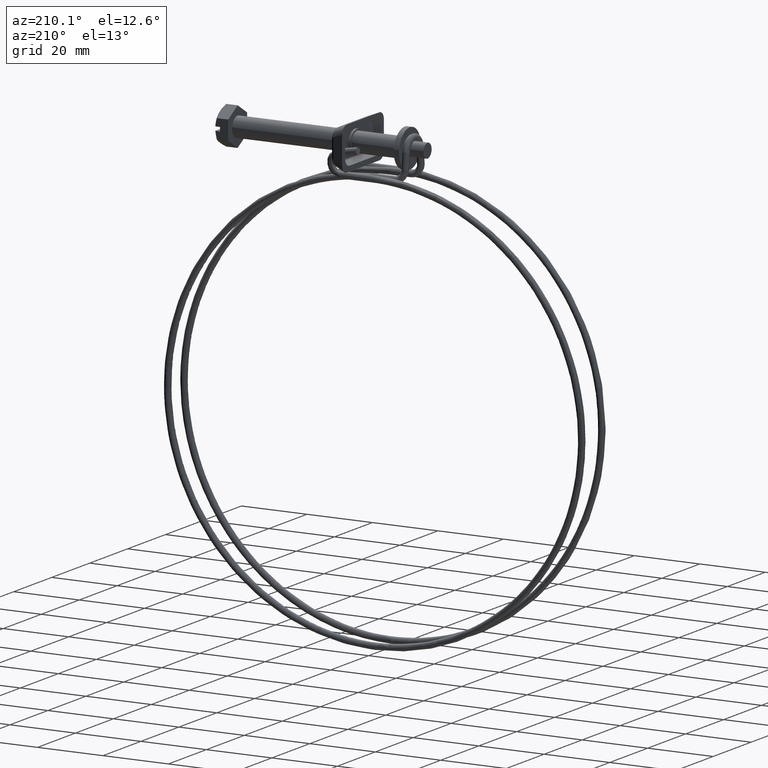
[diagram: clean part render]
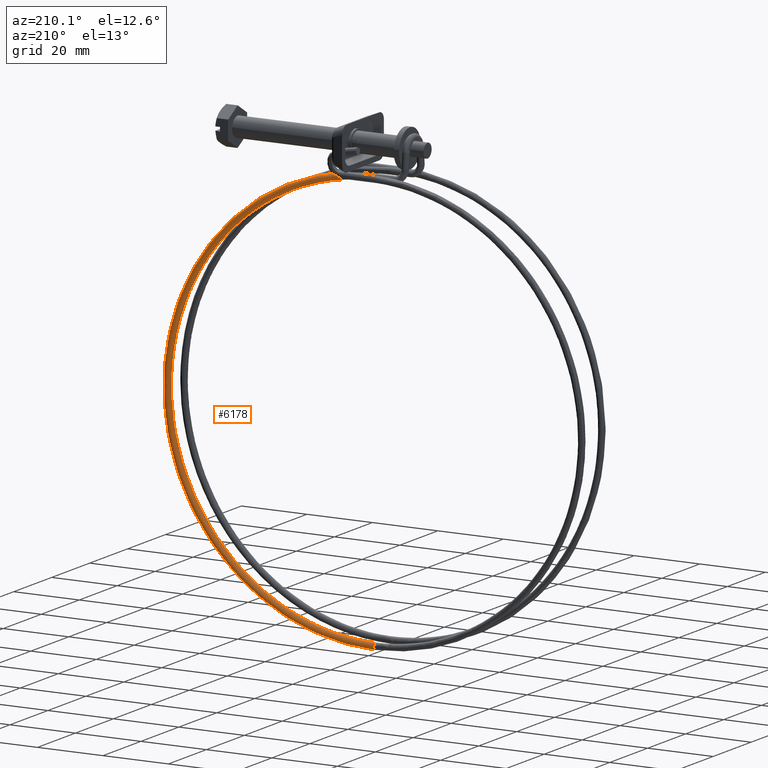
[diagram: same view with one face highlighted and labeled with its STEP entity id]
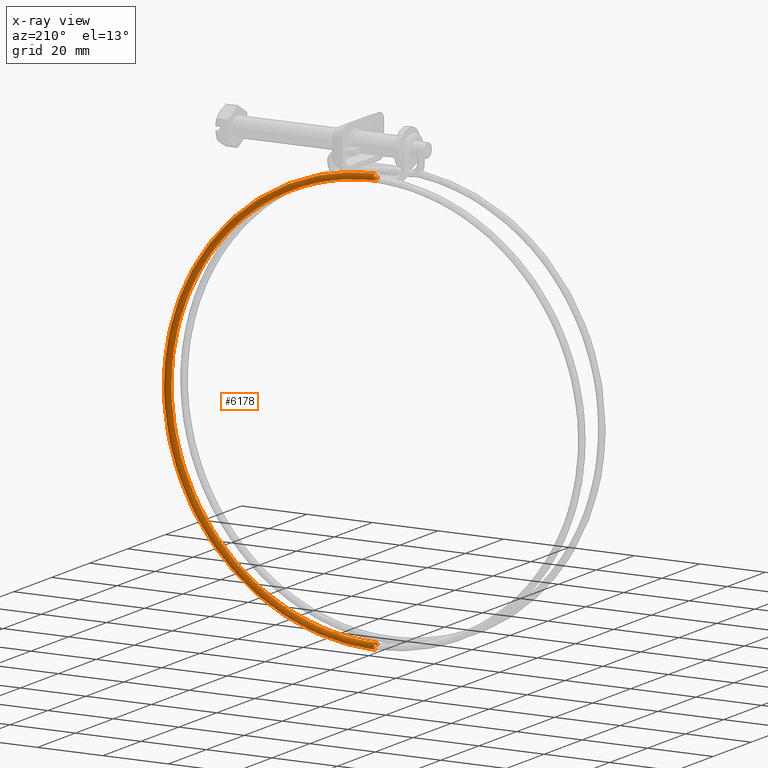
[diagram: x-ray of the same camera — body ghosted, the highlighted face saturated]
A machine part, auxiliary view. The second image highlights one B-rep face of the part: STEP entity #6178.
The next image is the same camera in x-ray: the body ghosted, the highlighted face saturated — about 0% of this face is hidden behind the body in this view.
In plain terms, the highlighted face is a freeform B-spline surface patch.
Its self-contained STEP definition (entity closure, byte-faithful):
#5491=CARTESIAN_POINT('',(-44.650000000000752,4.871712610916520,-7.029545652424361));
#5492=VERTEX_POINT('',#5491);
#5498=CARTESIAN_POINT('',(-44.650000000000752,4.300002000000000,-8.850000999999999));
#5499=VERTEX_POINT('',#5498);
#5500=CARTESIAN_POINT('',(-44.650000000000752,4.871712610916520,-7.029545652424361));
#5501=CARTESIAN_POINT('',(-44.650000000000752,5.300002000000000,-7.327986742516820));
#5502=CARTESIAN_POINT('',(-44.650000000000752,5.300002000000000,-7.850001000000001));
#5503=CARTESIAN_POINT('',(-44.650000000000752,5.300002000000001,-8.850000999999999));
#5504=CARTESIAN_POINT('',(-44.650000000000752,4.300002000000000,-8.850000999999999));
#5512=(BOUNDED_CURVE()B_SPLINE_CURVE(2,(#5500,#5501,#5502,#5503,#5504),.UNSPECIFIED.,.F.,.U.)B_SPLINE_CURVE_WITH_KNOTS((3,2,3),(0.098251884135268,0.250000000000000,0.500000000000000),.UNSPECIFIED.)CURVE()GEOMETRIC_REPRESENTATION_ITEM()RATIONAL_B_SPLINE_CURVE((0.860259114782978,0.822216023582008,1.0,0.707106781186548,1.0))REPRESENTATION_ITEM(''));
#5513=EDGE_CURVE('',#5492,#5499,#5512,.T.);
#5515=CARTESIAN_POINT('',(-44.649999999847267,3.302436326670402,-7.919734258877777));
#5516=VERTEX_POINT('',#5515);
#5517=CARTESIAN_POINT('',(-44.650000000000752,4.300002000000000,-8.850000999999999));
#5518=CARTESIAN_POINT('',(-44.650000000000759,3.367465166419305,-8.850000999999999));
#5519=CARTESIAN_POINT('',(-44.649999999847267,3.302436326670402,-7.919734258877777));
#5527=(BOUNDED_CURVE()B_SPLINE_CURVE(2,(#5517,#5518,#5519),.UNSPECIFIED.,.F.,.U.)B_SPLINE_CURVE_WITH_KNOTS((3,3),(0.500000000000000,0.737833684017261),.UNSPECIFIED.)CURVE()GEOMETRIC_REPRESENTATION_ITEM()RATIONAL_B_SPLINE_CURVE((1.0,0.721360506983691,0.972879871061548))REPRESENTATION_ITEM(''));
#5528=EDGE_CURVE('',#5499,#5516,#5527,.T.);
#5645=CARTESIAN_POINT('',(-44.649999999983557,4.287435958278233,-6.850079955819304));
#5646=VERTEX_POINT('',#5645);
#5660=CARTESIAN_POINT('',(-44.650000000000752,4.300002000000000,-6.850001000000001));
#5661=VERTEX_POINT('',#5660);
#5662=CARTESIAN_POINT('',(-44.649999999983564,4.287435958278233,-6.850079955819304));
#5663=CARTESIAN_POINT('',(-44.650000000000752,4.293718730169101,-6.850001000000001));
#5664=CARTESIAN_POINT('',(-44.650000000000752,4.300002000000000,-6.850001000000001));
#5672=(BOUNDED_CURVE()B_SPLINE_CURVE(2,(#5662,#5663,#5664),.UNSPECIFIED.,.F.,.U.)B_SPLINE_CURVE_WITH_KNOTS((3,3),(0.997784295274912,1.0),.UNSPECIFIED.)CURVE()GEOMETRIC_REPRESENTATION_ITEM()RATIONAL_B_SPLINE_CURVE((0.994854294155291,0.997404140444515,1.0))REPRESENTATION_ITEM(''));
#5673=EDGE_CURVE('',#5646,#5661,#5672,.T.);
#5675=CARTESIAN_POINT('',(-44.650000000000752,4.300002000000000,-6.850001000000001));
#5676=CARTESIAN_POINT('',(-44.650000000000745,4.614050137306690,-6.850001000000001));
#5677=CARTESIAN_POINT('',(-44.650000000000752,4.871712610916520,-7.029545652424361));
#5685=(BOUNDED_CURVE()B_SPLINE_CURVE(2,(#5675,#5676,#5677),.UNSPECIFIED.,.F.,.U.)B_SPLINE_CURVE_WITH_KNOTS((3,3),(0.0,0.098251884135268),.UNSPECIFIED.)CURVE()GEOMETRIC_REPRESENTATION_ITEM()RATIONAL_B_SPLINE_CURVE((1.0,0.884890757604540,0.860259114782978))REPRESENTATION_ITEM(''));
#5686=EDGE_CURVE('',#5661,#5492,#5685,.T.);
#6043=CARTESIAN_POINT('',(-53.432480049790740,3.300955242574922,-134.190713116354200));
#6044=CARTESIAN_POINT('',(19.724674720302861,3.300955242574922,-144.414996556652570));
#6045=CARTESIAN_POINT('',(18.796444458269598,3.300955242574922,-70.552667494378710));
#6046=CARTESIAN_POINT('',(17.888216323286368,3.300955242574921,1.718026657310488));
#6047=CARTESIAN_POINT('',(-53.656390111342802,3.300955242574923,-8.540988969258873));
#6048=CARTESIAN_POINT('',(-53.431019694714372,3.301692775296301,-134.180263932021210));
#6049=CARTESIAN_POINT('',(19.713970467918102,3.301692775296301,-144.402847273470540));
#6050=CARTESIAN_POINT('',(18.785894552466619,3.301692775296301,-70.552800075383814));
#6051=CARTESIAN_POINT('',(17.877817438101690,3.301692775296301,1.705876869949257));
#6052=CARTESIAN_POINT('',(-53.654892524391933,3.301692775296302,-8.551432882486166));
#6053=CARTESIAN_POINT('',(-53.299155210866850,3.368289162161057,-133.236742509728910));
#6054=CARTESIAN_POINT('',(18.747417375088101,3.368289162161057,-143.305813420643660));
#6055=CARTESIAN_POINT('',(17.833278366262171,3.368289162161057,-70.564771633597090));
#6056=CARTESIAN_POINT('',(16.938837836729363,3.368289162161058,0.608797491668740));
#6057=CARTESIAN_POINT('',(-53.519666144527918,3.368289162161058,-9.494478344069872));
#6058=CARTESIAN_POINT('',(-53.300797723020167,4.312568039884106,-133.248495070826490));
#6059=CARTESIAN_POINT('',(18.759456820096087,4.312568039884107,-143.319478142055170));
#6060=CARTESIAN_POINT('',(17.845144212300649,4.312568039884106,-70.564622515128761));
#6061=CARTESIAN_POINT('',(16.950533824625122,4.312568039884106,0.622462780148170));
#6062=CARTESIAN_POINT('',(-53.521350532665572,4.312568039884107,-9.482731711568254));
#6063=CARTESIAN_POINT('',(-53.302537021130291,5.312489084087922,-133.260940158228120));
#6064=CARTESIAN_POINT('',(18.772205696204658,5.312489084087923,-143.333948064897870));
#6065=CARTESIAN_POINT('',(17.857709260022325,5.312489084087922,-70.564464609770397));
#6066=CARTESIAN_POINT('',(16.962919005217035,5.312489084087923,0.636933303473491));
#6067=CARTESIAN_POINT('',(-53.523134174326117,5.312489084087922,-9.470292902108474));
#6068=CARTESIAN_POINT('',(-53.440938681366852,5.299923044204570,-134.251236616408900));
#6069=CARTESIAN_POINT('',(19.786675619047337,5.299923044204570,-144.485367326073260));
#6070=CARTESIAN_POINT('',(18.857551354663968,5.299923044204570,-70.551899562048746));
#6071=CARTESIAN_POINT('',(17.948448481891717,5.299923044204570,1.788400347025015));
#6072=CARTESIAN_POINT('',(-53.665064396436627,5.299923044204571,-8.480496000368872));
#6073=CARTESIAN_POINT('',(-53.579340341603420,5.287357004321217,-135.241533074589680));
#6074=CARTESIAN_POINT('',(20.801145541889994,5.287357004321218,-145.636786587248650));
#6075=CARTESIAN_POINT('',(19.857393449305601,5.287357004321217,-70.539334514327066));
#6076=CARTESIAN_POINT('',(18.933977958566373,5.287357004321218,2.939867390576525));
#6077=CARTESIAN_POINT('',(-53.806994618547151,5.287357004321216,-7.490699098629279));
#6078=CARTESIAN_POINT('',(-53.577582844403580,4.276973318501491,-135.228957768417220));
#6079=CARTESIAN_POINT('',(20.788263268327196,4.276973318501492,-145.622165258834710));
#6080=CARTESIAN_POINT('',(19.844696927612116,4.276973318501491,-70.539494071923045));
#6081=CARTESIAN_POINT('',(18.921463186036572,4.276973318501492,2.925245455396814));
#6082=CARTESIAN_POINT('',(-53.805192313809577,4.276973318501490,-7.503268061170911));
#6083=CARTESIAN_POINT('',(-53.577564802386803,4.266600977995334,-135.228828673540220));
#6084=CARTESIAN_POINT('',(20.788131022201529,4.266600977995335,-145.622015160016700));
#6085=CARTESIAN_POINT('',(19.844566588367620,4.266600977995334,-70.539495709900507));
#6086=CARTESIAN_POINT('',(18.921334712582500,4.266600977995335,2.925095350349916));
#6087=CARTESIAN_POINT('',(-53.805173811810100,4.266600977995334,-7.503397090925766));
#6095=(BOUNDED_SURFACE()B_SPLINE_SURFACE(2,2,((#6043,#6048,#6053,#6058,#6063,#6068,#6073,#6078,#6083),(#6044,#6049,#6054,#6059,#6064,#6069,#6074,#6079,#6084),(#6045,#6050,#6055,#6060,#6065,#6070,#6075,#6080,#6085),(#6046,#6051,#6056,#6061,#6066,#6071,#6076,#6081,#6086),(#6047,#6052,#6057,#6062,#6067,#6072,#6077,#6082,#6087)),.UNSPECIFIED.,.F.,.F.,.U.)B_SPLINE_SURFACE_WITH_KNOTS((3,2,3),(3,1,2,2,1,3),(0.0,118.497274549801400,235.318141214528400),(0.0,0.024522101943496,1.615102181456185,3.271956430948570,4.928810680440955,4.953434834273305),.UNSPECIFIED.)GEOMETRIC_REPRESENTATION_ITEM()RATIONAL_B_SPLINE_SURFACE(((0.985482083298796,0.981493942046961,0.718822509939086,1.0,0.707106781186548,1.0,0.707106781186548,1.004352976538959,1.008705953077918),(0.642135638297604,0.639536983617049,0.468381474473210,0.651595446715910,0.460747558963097,0.651595446715910,0.460747558963097,0.654431826408357,0.657268206100803),(0.985482083298796,0.981493942046961,0.718822509939086,1.0,0.707106781186548,1.0,0.707106781186548,1.004352976538959,1.008705953077918),(0.646993038519669,0.644374726456670,0.471924520743230,0.656524405145884,0.464232858893119,0.656524405145884,0.464232858893119,0.659382240478738,0.662240075811592),(0.975904720345346,0.971955337663480,0.711836665961333,0.990281545331204,0.700234795987588,0.990281545331204,0.700234795987588,0.994592217664995,0.998902889998786)))REPRESENTATION_ITEM('')SURFACE());
#6096=CARTESIAN_POINT('',(-44.649999999999046,4.300002000000752,-133.850000999999990));
#6097=VERTEX_POINT('',#6096);
#6098=CARTESIAN_POINT('',(-44.649999999769619,3.302485887016020,-134.780271342321810));
#6099=VERTEX_POINT('',#6098);
#6100=CARTESIAN_POINT('',(-44.649999999999046,4.300002000000752,-133.850000999999990));
#6101=CARTESIAN_POINT('',(-44.649999999966852,4.038195655370024,-133.850000495566090));
#6102=CARTESIAN_POINT('',(-44.649999999922478,3.777998799463453,-133.957772896960310));
#6103=CARTESIAN_POINT('',(-44.649999999838357,3.424196145361151,-134.311556064605810));
#6104=CARTESIAN_POINT('',(-44.649999999799007,3.319730377627817,-134.542534340478000));
#6105=CARTESIAN_POINT('',(-44.649999999769619,3.302485887016020,-134.780271342321810));
#6106=B_SPLINE_CURVE_WITH_KNOTS('',3,(#6100,#6101,#6102,#6103,#6104,#6105),.UNSPECIFIED.,.F.,.U.,(4,2,4),(0.500000000000000,0.625000000000000,0.738888458231654),.UNSPECIFIED.);
#6107=EDGE_CURVE('',#6097,#6099,#6106,.T.);
#6108=ORIENTED_EDGE('',*,*,#6107,.T.);
#6109=CARTESIAN_POINT('',(-44.649999999769626,3.302485887016020,-134.780271342321900));
#6110=CARTESIAN_POINT('',(19.582405530913508,3.302485887016020,-134.780271342088530));
#6111=CARTESIAN_POINT('',(18.775258561133576,3.302460795454571,-70.552935516292749));
#6112=CARTESIAN_POINT('',(17.988145131122849,3.302436326670402,-7.919734259180106));
#6113=CARTESIAN_POINT('',(-44.649999999847267,3.302436326670402,-7.919734258877777));
#6121=(BOUNDED_CURVE()B_SPLINE_CURVE(2,(#6109,#6110,#6111,#6112,#6113),.UNSPECIFIED.,.F.,.U.)B_SPLINE_CURVE_WITH_KNOTS((3,2,3),(-3.822326489113122,-2.0,-0.208790604149167),.UNSPECIFIED.)CURVE()GEOMETRIC_REPRESENTATION_ITEM()RATIONAL_B_SPLINE_CURVE((0.922371478316950,0.667193238145990,0.977505800795127,0.672491973037953,0.913821779423857))REPRESENTATION_ITEM(''));
#6122=EDGE_CURVE('',#6099,#5516,#6121,.T.);
#6123=ORIENTED_EDGE('',*,*,#6122,.T.);
#6124=ORIENTED_EDGE('',*,*,#5528,.F.);
#6125=ORIENTED_EDGE('',*,*,#5513,.F.);
#6126=ORIENTED_EDGE('',*,*,#5686,.F.);
#6127=ORIENTED_EDGE('',*,*,#5673,.F.);
#6128=CARTESIAN_POINT('',(-44.649999999938402,4.287435984473220,-135.849920191922910));
#6129=VERTEX_POINT('',#6128);
#6130=CARTESIAN_POINT('',(-44.649999999938402,4.287435984473220,-135.849920191922910));
#6131=CARTESIAN_POINT('',(20.665586668666208,4.287435984473220,-135.849920191860520));
#6132=CARTESIAN_POINT('',(19.844828401575199,4.287435971211143,-70.539491505194604));
#6133=CARTESIAN_POINT('',(19.044441509214234,4.287435958278235,-6.850079955852583));
#6134=CARTESIAN_POINT('',(-44.649999999983564,4.287435958278233,-6.850079955819305));
#6142=(BOUNDED_CURVE()B_SPLINE_CURVE(2,(#6130,#6131,#6132,#6133,#6134),.UNSPECIFIED.,.F.,.U.)B_SPLINE_CURVE_WITH_KNOTS((3,2,3),(-3.822326489116452,-2.0,-0.208790604143862),.UNSPECIFIED.)CURVE()GEOMETRIC_REPRESENTATION_ITEM()RATIONAL_B_SPLINE_CURVE((0.943596935759976,0.682546576810809,1.0,0.687967245299239,0.934850492633354))REPRESENTATION_ITEM(''));
#6143=EDGE_CURVE('',#6129,#5646,#6142,.T.);
#6144=ORIENTED_EDGE('',*,*,#6143,.F.);
#6145=CARTESIAN_POINT('',(-44.649999999999046,4.300002000000752,-135.850000999999990));
#6146=VERTEX_POINT('',#6145);
#6147=CARTESIAN_POINT('',(-44.649999999938402,4.287435984473220,-135.849920191922910));
#6148=CARTESIAN_POINT('',(-44.649999999958617,4.291624042900045,-135.849974639911810));
#6149=CARTESIAN_POINT('',(-44.649999999978832,4.295812815061126,-135.850001617475900));
#6150=CARTESIAN_POINT('',(-44.649999999999046,4.300002000000752,-135.850000999999990));
#6151=B_SPLINE_CURVE_WITH_KNOTS('',3,(#6147,#6148,#6149,#6150),.UNSPECIFIED.,.F.,.U.,(4,4),(0.997999815404391,1.0),.UNSPECIFIED.);
#6152=EDGE_CURVE('',#6129,#6146,#6151,.T.);
#6153=ORIENTED_EDGE('',*,*,#6152,.T.);
#6154=CARTESIAN_POINT('',(-44.649999999999046,5.028951109211137,-135.534536542634610));
#6155=VERTEX_POINT('',#6154);
#6156=CARTESIAN_POINT('',(-44.649999999999046,4.300002000000752,-135.850000999999990));
#6157=CARTESIAN_POINT('',(-44.649999999999046,4.561801387799900,-135.850000999999990));
#6158=CARTESIAN_POINT('',(-44.649999999999046,4.821988658764040,-135.742227903610000));
#6159=CARTESIAN_POINT('',(-44.649999999999046,5.014513974616199,-135.549702587757710));
#6160=CARTESIAN_POINT('',(-44.649999999999046,5.021795399816163,-135.542177274286590));
#6161=CARTESIAN_POINT('',(-44.649999999999046,5.028951109211137,-135.534536542634610));
#6162=B_SPLINE_CURVE_WITH_KNOTS('',3,(#6156,#6157,#6158,#6159,#6160,#6161),.UNSPECIFIED.,.F.,.U.,(4,2,4),(0.0,0.125000000000000,0.130000262351250),.UNSPECIFIED.);
#6163=EDGE_CURVE('',#6146,#6155,#6162,.T.);
#6164=ORIENTED_EDGE('',*,*,#6163,.T.);
#6165=CARTESIAN_POINT('',(-44.649999999999046,5.028951109211137,-135.534536542634610));
#6166=CARTESIAN_POINT('',(-44.649999999999046,5.200678748661970,-135.351169005261110));
#6167=CARTESIAN_POINT('',(-44.649999999999046,5.300002000000750,-135.101327862820110));
#6168=CARTESIAN_POINT('',(-44.649999999999046,5.300002000000750,-134.588201612201000));
#6169=CARTESIAN_POINT('',(-44.649999999999046,5.192228903610570,-134.328014341236810));
#6170=CARTESIAN_POINT('',(-44.649999999999046,4.821988658764040,-133.957774096390210));
#6171=CARTESIAN_POINT('',(-44.649999999999046,4.561801387799900,-133.850000999999990));
#6172=CARTESIAN_POINT('',(-44.649999999999046,4.300002000000752,-133.850000999999990));
#6173=B_SPLINE_CURVE_WITH_KNOTS('',3,(#6165,#6166,#6167,#6168,#6169,#6170,#6171,#6172),.UNSPECIFIED.,.F.,.U.,(4,2,2,4),(0.130000262351250,0.250000000000000,0.375000000000000,0.500000000000000),.UNSPECIFIED.);
#6174=EDGE_CURVE('',#6155,#6097,#6173,.T.);
#6175=ORIENTED_EDGE('',*,*,#6174,.T.);
#6176=EDGE_LOOP('',(#6108,#6123,#6124,#6125,#6126,#6127,#6144,#6153,#6164,#6175));
#6177=FACE_OUTER_BOUND('',#6176,.T.);
#6178=ADVANCED_FACE('',(#6177),#6095,.T.);